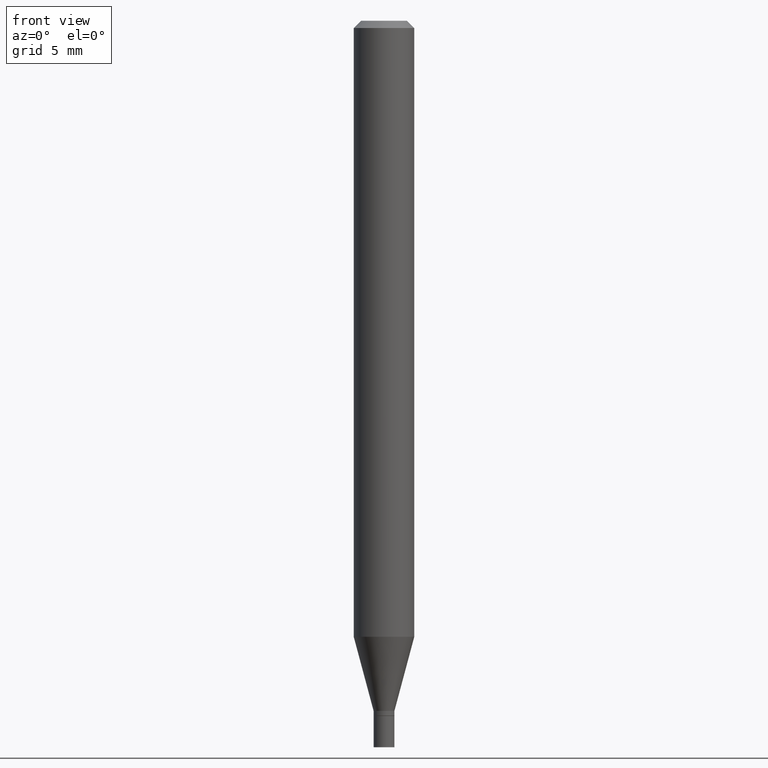
[diagram: clean part render]
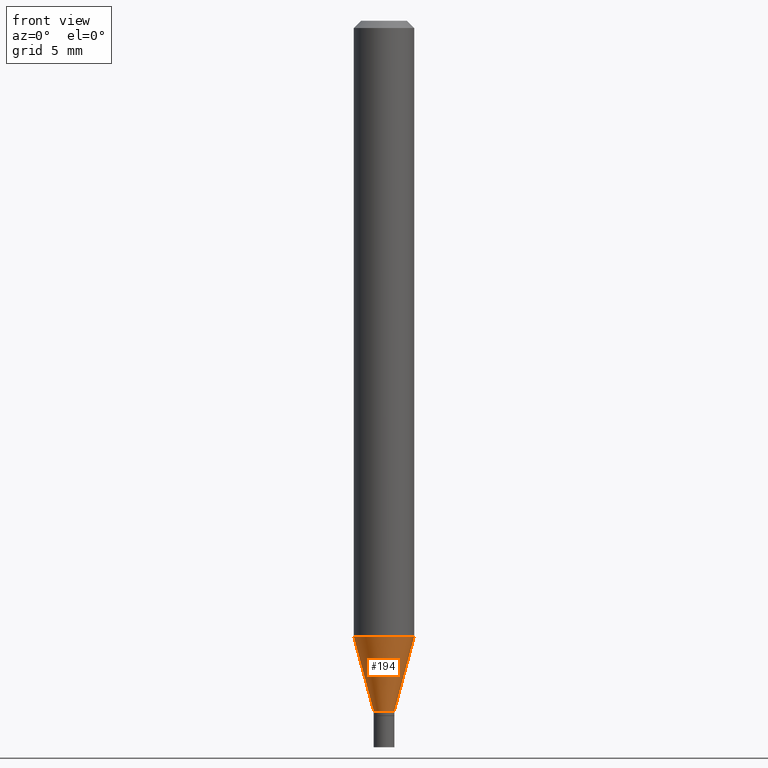
[diagram: same view with one face highlighted and labeled with its STEP entity id]
A machine part, front view. The second image highlights one B-rep face of the part: STEP entity #194.
In plain terms, the highlighted conical surface has half-angle 15 deg.
Its self-contained STEP definition (entity closure, byte-faithful):
#12 = EDGE_LOOP ( 'NONE', ( #386, #50, #92, #123 ) ) ;
#48 = EDGE_CURVE ( 'NONE', #100, #113, #140, .T. ) ;
#49 = VERTEX_POINT ( 'NONE', #288 ) ;
#50 = ORIENTED_EDGE ( 'NONE', *, *, #48, .T. ) ;
#92 = ORIENTED_EDGE ( 'NONE', *, *, #437, .T. ) ;
#96 = DIRECTION ( 'NONE',  ( 0.2588190451025213501, 1.565188264969621968E-15, 0.9659258262890682012 ) ) ;
#97 = VECTOR ( 'NONE', #291, 39.37007874015747433 ) ;
#100 = VERTEX_POINT ( 'NONE', #187 ) ;
#113 = VERTEX_POINT ( 'NONE', #268 ) ;
#119 = CIRCLE ( 'NONE', #238, 0.06250000000000000000 ) ;
#123 = ORIENTED_EDGE ( 'NONE', *, *, #211, .F. ) ;
#140 = CIRCLE ( 'NONE', #422, 0.02149999999999991501 ) ;
#150 = LINE ( 'NONE', #444, #97 ) ;
#180 = CARTESIAN_POINT ( 'NONE',  ( 3.484793048813820547E-29, -4.975360907851483175E-15, -1.425000000000000266 ) ) ;
#187 = CARTESIAN_POINT ( 'NONE',  ( -0.02149999999999991501, -4.409810050952296864E-15, -1.425000000000000266 ) ) ;
#194 = ADVANCED_FACE ( 'NONE', ( #233 ), #257, .T. ) ;
#199 = CARTESIAN_POINT ( 'NONE',  ( 3.484793048813820547E-29, -4.975360907851483175E-15, -1.425000000000000266 ) ) ;
#203 = DIRECTION ( 'NONE',  ( -2.445468806185136597E-29, 3.491481338843145583E-15, 1.000000000000000000 ) ) ;
#205 = CARTESIAN_POINT ( 'NONE',  ( 0.02149999999999991501, -5.125494605421737215E-15, -1.425000000000000266 ) ) ;
#211 = EDGE_CURVE ( 'NONE', #286, #49, #119, .T. ) ;
#233 = FACE_OUTER_BOUND ( 'NONE', #12, .T. ) ;
#238 = AXIS2_PLACEMENT_3D ( 'NONE', #275, #203, #452 ) ;
#257 = CONICAL_SURFACE ( 'NONE', #290, 0.02149999999999991501, 0.2617993877991500740 ) ;
#268 = CARTESIAN_POINT ( 'NONE',  ( 0.02149999999999991501, -5.125494605421737215E-15, -1.425000000000000266 ) ) ;
#275 = CARTESIAN_POINT ( 'NONE',  ( 3.110601881660502602E-29, -4.441115092091593662E-15, -1.271985916889676327 ) ) ;
#286 = VERTEX_POINT ( 'NONE', #357 ) ;
#288 = CARTESIAN_POINT ( 'NONE',  ( 0.06250000000000001388, -4.877550259446984543E-15, -1.271985916889676327 ) ) ;
#290 = AXIS2_PLACEMENT_3D ( 'NONE', #199, #347, #413 ) ;
#291 = DIRECTION ( 'NONE',  ( -0.2588190451025213501, 5.211531920934551042E-15, 0.9659258262890682012 ) ) ;
#325 = DIRECTION ( 'NONE',  ( -2.445468806185136597E-29, 3.491481338843145583E-15, 1.000000000000000000 ) ) ;
#328 = DIRECTION ( 'NONE',  ( 1.000000000000000000, -6.982962677686246989E-15, 0.000000000000000000 ) ) ;
#333 = VECTOR ( 'NONE', #96, 39.37007874015747433 ) ;
#347 = DIRECTION ( 'NONE',  ( -2.445468806185136597E-29, 3.491481338843145583E-15, 1.000000000000000000 ) ) ;
#357 = CARTESIAN_POINT ( 'NONE',  ( -0.06250000000000001388, -3.997025882241531046E-15, -1.271985916889676327 ) ) ;
#386 = ORIENTED_EDGE ( 'NONE', *, *, #399, .F. ) ;
#399 = EDGE_CURVE ( 'NONE', #100, #286, #150, .T. ) ;
#413 = DIRECTION ( 'NONE',  ( 1.000000000000000000, -6.982962677686246989E-15, 0.000000000000000000 ) ) ;
#415 = LINE ( 'NONE', #205, #333 ) ;
#422 = AXIS2_PLACEMENT_3D ( 'NONE', #180, #325, #328 ) ;
#437 = EDGE_CURVE ( 'NONE', #113, #49, #415, .T. ) ;
#444 = CARTESIAN_POINT ( 'NONE',  ( -0.02149999999999991501, -4.822594219663062683E-15, -1.425000000000000266 ) ) ;
#452 = DIRECTION ( 'NONE',  ( 1.000000000000000000, -6.982962677686262766E-15, 0.000000000000000000 ) ) ;